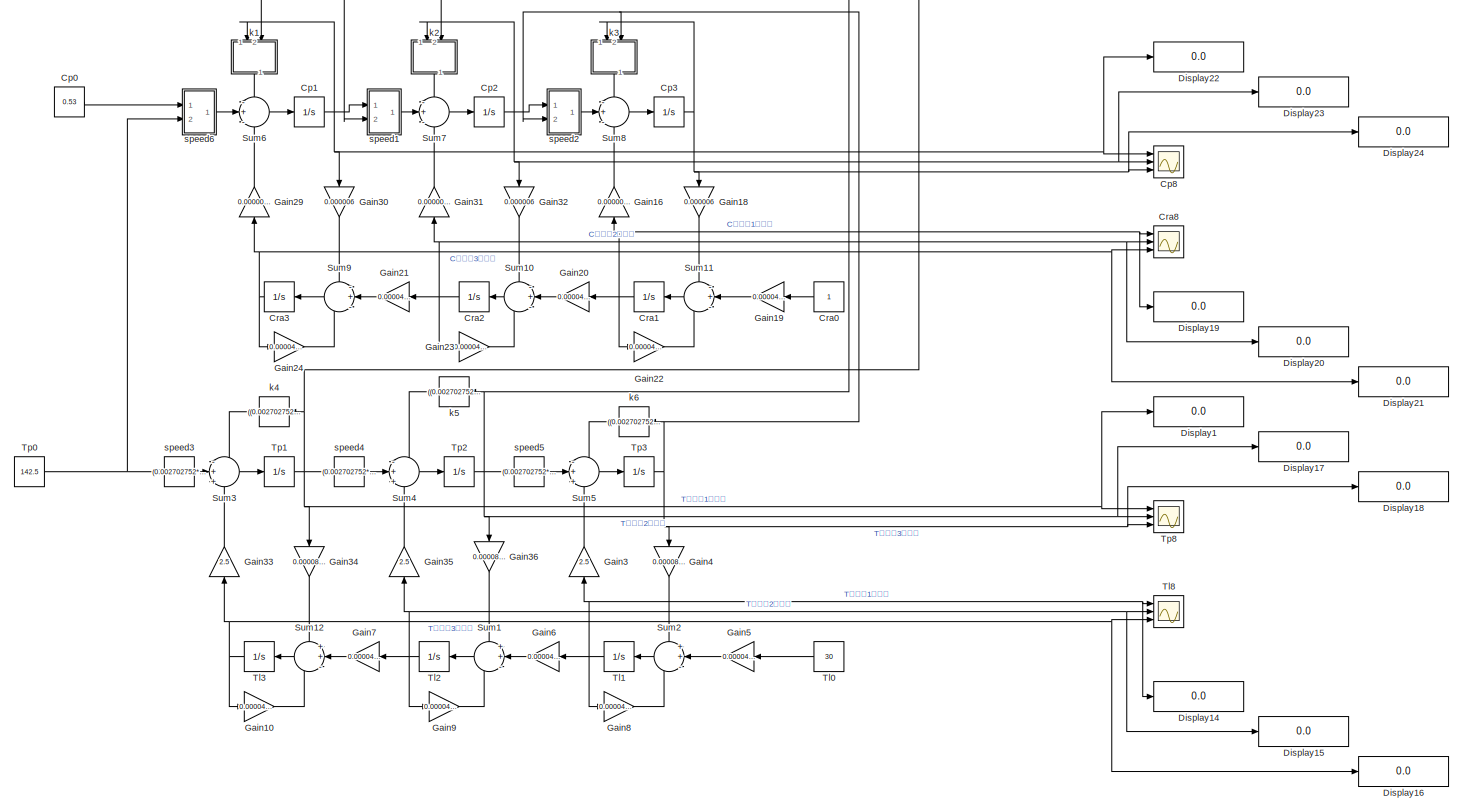
[diagram: root canvas - part 1/2, full width, top band]
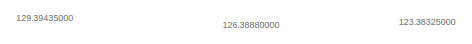
[diagram: root canvas - part 2/2, bottom center region]
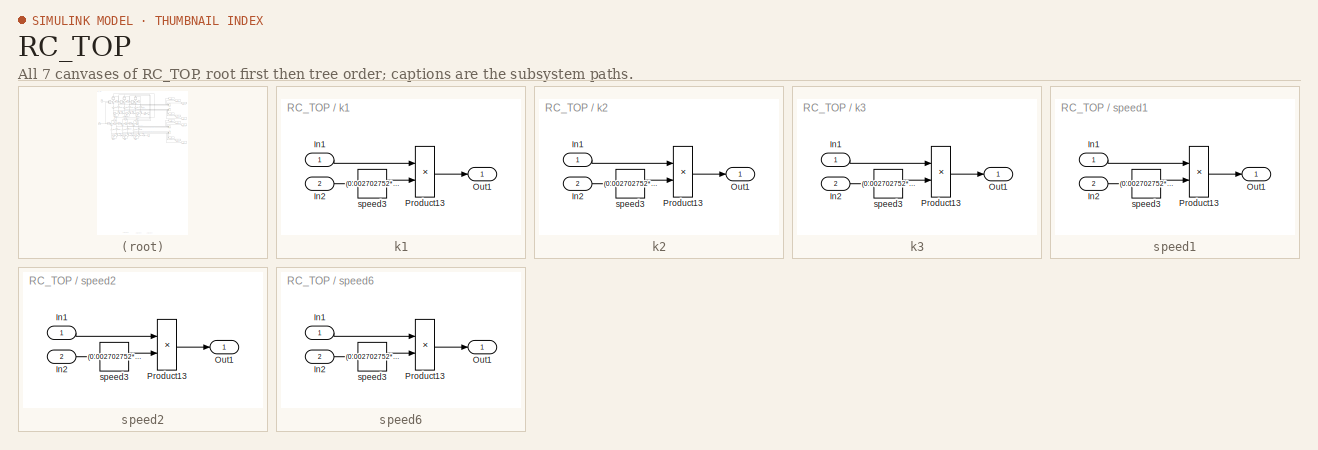
[diagram: thumbnail index - all 7 canvases of the model, root first then tree order]
MODEL RC_TOP
KIND model
BLOCK [Constant] Cp0
  SID = 4
  Value = 0.53
BLOCK [Integrator] Cp1
  InitialCondition = 0.68200000
  Ports = [1, 1]
  SID = 5
BLOCK [Integrator] Cp2
  InitialCondition = 0.83400000
  Ports = [1, 1]
  SID = 6
BLOCK [Integrator] Cp3
  InitialCondition = 0.98600000
  Ports = [1, 1]
  SID = 7
BLOCK [Scope] Cp8
  Floating = off
  NumInputPorts = 3
  Ports = [3]
  SID = 455
  ScopeSpecificationString = C++SS(StrPVP('Location','[5, 49, 1371, 737]'),StrPVP('Open','off'),StrPVP('TickLabels','on'),StrPVP('ZoomMode','xonly'),MxPVP('AxesTitles',53,'struct(''axes1'',''%<SignalLabel>'',''axes2'',''%<SignalLabel>'',''axes3'',''%<SignalLabel>'')'),MxPVP('ScopeGraphics',56,'struct(''FigureColor'',''[1 1 1]'',''AxesColor'',''[1 1 1]'',''AxesTickColor'',''[0 0 0]'',''LineColors'',''[0 0 0;1 0 1;0 1 1;1 0 0;0...<+446ch>
BLOCK [Constant] Cra0
  SID = 11
BLOCK [Integrator] Cra1
  InitialCondition = 0.88825000
  Ports = [1, 1]
  SID = 12
BLOCK [Integrator] Cra2
  InitialCondition = 0.77650000
  Ports = [1, 1]
  SID = 13
BLOCK [Integrator] Cra3
  InitialCondition = 0.66475000
  Ports = [1, 1]
  SID = 14
BLOCK [Scope] Cra8
  Floating = off
  NumInputPorts = 3
  Ports = [3]
  SID = 456
  ScopeSpecificationString = C++SS(StrPVP('Location','[5, 49, 1371, 737]'),StrPVP('Open','off'),StrPVP('TickLabels','on'),StrPVP('ZoomMode','xonly'),MxPVP('AxesTitles',53,'struct(''axes1'',''%<SignalLabel>'',''axes2'',''%<SignalLabel>'',''axes3'',''%<SignalLabel>'')'),MxPVP('ScopeGraphics',56,'struct(''FigureColor'',''[1 1 1]'',''AxesColor'',''[1 1 1]'',''AxesTickColor'',''[0 0 0]'',''LineColors'',''[0 0 0;1 0 0;0 1 1;1 0 0;0...<+459ch>
BLOCK [Display] Display1
  Decimation = 1
  Ports = [1]
  SID = 476
BLOCK [Display] Display14
  Decimation = 1
  Ports = [1]
  SID = 473
BLOCK [Display] Display15
  Decimation = 1
  Ports = [1]
  SID = 474
BLOCK [Display] Display16
  Decimation = 1
  Ports = [1]
  SID = 475
BLOCK [Display] Display17
  Decimation = 1
  Ports = [1]
  SID = 477
BLOCK [Display] Display18
  Decimation = 1
  Ports = [1]
  SID = 478
BLOCK [Display] Display19
  Decimation = 1
  Ports = [1]
  SID = 479
BLOCK [Display] Display20
  Decimation = 1
  Ports = [1]
  SID = 480
BLOCK [Display] Display21
  Decimation = 1
  Ports = [1]
  SID = 481
BLOCK [Display] Display22
  Decimation = 1
  Ports = [1]
  SID = 482
BLOCK [Display] Display23
  Decimation = 1
  Ports = [1]
  SID = 483
BLOCK [Display] Display24
  Decimation = 1
  Ports = [1]
  SID = 484
BLOCK [Gain] Gain10
  Gain = 0.00004/1.17+0.0000855
  OutDataTypeStr = Inherit: Inherit via internal rule
  ParamDataTypeStr = Inherit: Inherit via internal rule
  SID = 17
  SaturateOnIntegerOverflow = off
BLOCK [Gain] Gain16
  Gain = 0.000000000145
  OutDataTypeStr = Inherit: Inherit via internal rule
  ParamDataTypeStr = Inherit: Inherit via internal rule
  SID = 18
  SaturateOnIntegerOverflow = off
BLOCK [Gain] Gain18
  Gain = 0.000006
  OutDataTypeStr = Inherit: Inherit via internal rule
  ParamDataTypeStr = Inherit: Inherit via internal rule
  SID = 19
  SaturateOnIntegerOverflow = off
BLOCK [Gain] Gain19
  Gain = 0.00004/1.17
  OutDataTypeStr = Inherit: Inherit via internal rule
  ParamDataTypeStr = Inherit: Inherit via internal rule
  SID = 20
  SaturateOnIntegerOverflow = off
BLOCK [Gain] Gain20
  Gain = 0.00004/1.17
  OutDataTypeStr = Inherit: Inherit via internal rule
  ParamDataTypeStr = Inherit: Inherit via internal rule
  SID = 21
  SaturateOnIntegerOverflow = off
BLOCK [Gain] Gain21
  Gain = 0.00004/1.17
  OutDataTypeStr = Inherit: Inherit via internal rule
  ParamDataTypeStr = Inherit: Inherit via internal rule
  SID = 22
  SaturateOnIntegerOverflow = off
BLOCK [Gain] Gain22
  Gain = 0.00004/1.17-(0.000006*0.000000000145)
  OutDataTypeStr = Inherit: Inherit via internal rule
  ParamDataTypeStr = Inherit: Inherit via internal rule
  SID = 23
  SaturateOnIntegerOverflow = off
BLOCK [Gain] Gain23
  Gain = 0.00004/1.17-(0.000006*0.000000000145)
  OutDataTypeStr = Inherit: Inherit via internal rule
  ParamDataTypeStr = Inherit: Inherit via internal rule
  SID = 24
  SaturateOnIntegerOverflow = off
BLOCK [Gain] Gain24
  Gain = 0.00004/1.17-(0.000006*0.000000000145)
  OutDataTypeStr = Inherit: Inherit via internal rule
  ParamDataTypeStr = Inherit: Inherit via internal rule
  SID = 25
  SaturateOnIntegerOverflow = off
BLOCK [Gain] Gain29
  Gain = 0.000000000145
  OutDataTypeStr = Inherit: Inherit via internal rule
  ParamDataTypeStr = Inherit: Inherit via internal rule
  SID = 26
  SaturateOnIntegerOverflow = off
BLOCK [Gain] Gain3
  Gain = 2.5
  OutDataTypeStr = Inherit: Inherit via internal rule
  ParamDataTypeStr = Inherit: Inherit via internal rule
  SID = 27
  SaturateOnIntegerOverflow = off
BLOCK [Gain] Gain30
  Gain = 0.000006
  OutDataTypeStr = Inherit: Inherit via internal rule
  ParamDataTypeStr = Inherit: Inherit via internal rule
  SID = 28
  SaturateOnIntegerOverflow = off
BLOCK [Gain] Gain31
  Gain = 0.000000000145
  OutDataTypeStr = Inherit: Inherit via internal rule
  ParamDataTypeStr = Inherit: Inherit via internal rule
  SID = 29
  SaturateOnIntegerOverflow = off
BLOCK [Gain] Gain32
  Gain = 0.000006
  OutDataTypeStr = Inherit: Inherit via internal rule
  ParamDataTypeStr = Inherit: Inherit via internal rule
  SID = 30
  SaturateOnIntegerOverflow = off
BLOCK [Gain] Gain33
  Gain = 2.5
  OutDataTypeStr = Inherit: Inherit via internal rule
  ParamDataTypeStr = Inherit: Inherit via internal rule
  SID = 31
  SaturateOnIntegerOverflow = off
BLOCK [Gain] Gain34
  Gain = 0.0000855
  OutDataTypeStr = Inherit: Inherit via internal rule
  ParamDataTypeStr = Inherit: Inherit via internal rule
  SID = 32
  SaturateOnIntegerOverflow = off
BLOCK [Gain] Gain35
  Gain = 2.5
  OutDataTypeStr = Inherit: Inherit via internal rule
  ParamDataTypeStr = Inherit: Inherit via internal rule
  SID = 33
  SaturateOnIntegerOverflow = off
BLOCK [Gain] Gain36
  Gain = 0.0000855
  OutDataTypeStr = Inherit: Inherit via internal rule
  ParamDataTypeStr = Inherit: Inherit via internal rule
  SID = 34
  SaturateOnIntegerOverflow = off
BLOCK [Gain] Gain4
  Gain = 0.0000855
  OutDataTypeStr = Inherit: Inherit via internal rule
  ParamDataTypeStr = Inherit: Inherit via internal rule
  SID = 35
  SaturateOnIntegerOverflow = off
BLOCK [Gain] Gain5
  Gain = 0.00004/1.17
  OutDataTypeStr = Inherit: Inherit via internal rule
  ParamDataTypeStr = Inherit: Inherit via internal rule
  SID = 36
  SaturateOnIntegerOverflow = off
BLOCK [Gain] Gain6
  Gain = 0.00004/1.17
  OutDataTypeStr = Inherit: Inherit via internal rule
  ParamDataTypeStr = Inherit: Inherit via internal rule
  SID = 37
  SaturateOnIntegerOverflow = off
BLOCK [Gain] Gain7
  Gain = 0.00004/1.17
  OutDataTypeStr = Inherit: Inherit via internal rule
  ParamDataTypeStr = Inherit: Inherit via internal rule
  SID = 38
  SaturateOnIntegerOverflow = off
BLOCK [Gain] Gain8
  Gain = 0.00004/1.17+0.0000855
  OutDataTypeStr = Inherit: Inherit via internal rule
  ParamDataTypeStr = Inherit: Inherit via internal rule
  SID = 39
  SaturateOnIntegerOverflow = off
BLOCK [Gain] Gain9
  Gain = 0.00004/1.17+0.0000855
  OutDataTypeStr = Inherit: Inherit via internal rule
  ParamDataTypeStr = Inherit: Inherit via internal rule
  SID = 40
  SaturateOnIntegerOverflow = off
BLOCK [Sum] Sum1
  IconShape = round
  InputSameDT = off
  Inputs = ++-
  OutDataTypeStr = Inherit: Inherit via internal rule
  Ports = [3, 1]
  SID = 166
  SaturateOnIntegerOverflow = off
BLOCK [Sum] Sum10
  IconShape = round
  InputSameDT = off
  Inputs = -+-
  OutDataTypeStr = Inherit: Inherit via internal rule
  Ports = [3, 1]
  SID = 167
  SaturateOnIntegerOverflow = off
BLOCK [Sum] Sum11
  IconShape = round
  InputSameDT = off
  Inputs = -+-
  OutDataTypeStr = Inherit: Inherit via internal rule
  Ports = [3, 1]
  SID = 168
  SaturateOnIntegerOverflow = off
BLOCK [Sum] Sum12
  IconShape = round
  InputSameDT = off
  Inputs = ++-
  OutDataTypeStr = Inherit: Inherit via internal rule
  Ports = [3, 1]
  SID = 169
  SaturateOnIntegerOverflow = off
BLOCK [Sum] Sum2
  IconShape = round
  InputSameDT = off
  Inputs = ++-
  OutDataTypeStr = Inherit: Inherit via internal rule
  Ports = [3, 1]
  SID = 170
  SaturateOnIntegerOverflow = off
BLOCK [Sum] Sum3
  IconShape = round
  InputSameDT = off
  Inputs = -++
  OutDataTypeStr = Inherit: Inherit via internal rule
  Ports = [3, 1]
  SID = 171
  SaturateOnIntegerOverflow = off
BLOCK [Sum] Sum4
  IconShape = round
  InputSameDT = off
  Inputs = -++
  OutDataTypeStr = Inherit: Inherit via internal rule
  Ports = [3, 1]
  SID = 172
  SaturateOnIntegerOverflow = off
BLOCK [Sum] Sum5
  IconShape = round
  InputSameDT = off
  Inputs = -++
  OutDataTypeStr = Inherit: Inherit via internal rule
  Ports = [3, 1]
  SID = 173
  SaturateOnIntegerOverflow = off
BLOCK [Sum] Sum6
  IconShape = round
  InputSameDT = off
  Inputs = -+-
  OutDataTypeStr = Inherit: Inherit via internal rule
  Ports = [3, 1]
  SID = 174
  SaturateOnIntegerOverflow = off
BLOCK [Sum] Sum7
  IconShape = round
  InputSameDT = off
  Inputs = -+-
  OutDataTypeStr = Inherit: Inherit via internal rule
  Ports = [3, 1]
  SID = 175
  SaturateOnIntegerOverflow = off
BLOCK [Sum] Sum8
  IconShape = round
  InputSameDT = off
  Inputs = -+-
  OutDataTypeStr = Inherit: Inherit via internal rule
  Ports = [3, 1]
  SID = 176
  SaturateOnIntegerOverflow = off
BLOCK [Sum] Sum9
  IconShape = round
  InputSameDT = off
  Inputs = -+-
  OutDataTypeStr = Inherit: Inherit via internal rule
  Ports = [3, 1]
  SID = 177
  SaturateOnIntegerOverflow = off
BLOCK [Constant] Tl0
  SID = 459
  Value = 30
BLOCK [Integrator] Tl1
  InitialCondition = 57.25000000
  Ports = [1, 1]
  SID = 180
BLOCK [Integrator] Tl2
  InitialCondition = 84.50000000
  Ports = [1, 1]
  SID = 181
BLOCK [Integrator] Tl3
  InitialCondition = 111.75000000
  Ports = [1, 1]
  SID = 182
BLOCK [Scope] Tl8
  Floating = off
  NumInputPorts = 3
  Ports = [3]
  SID = 457
  ScopeSpecificationString = C++SS(StrPVP('Location','[5, 49, 1371, 737]'),StrPVP('Open','off'),StrPVP('TickLabels','on'),StrPVP('ZoomMode','xonly'),MxPVP('AxesTitles',53,'struct(''axes1'',''%<SignalLabel>'',''axes2'',''%<SignalLabel>'',''axes3'',''%<SignalLabel>'')'),MxPVP('ScopeGraphics',56,'struct(''FigureColor'',''[1 1 1]'',''AxesColor'',''[1 1 1]'',''AxesTickColor'',''[0 0 0]'',''LineColors'',''[0 0 0;1 0 1;0 1 1;1 0 0;0...<+472ch>
BLOCK [Constant] Tp0
  SID = 189
  Value = 142.5
BLOCK [Integrator] Tp1
  InitialCondition = 118.20000000
  Ports = [1, 1]
  SID = 190
BLOCK [Integrator] Tp2
  InitialCondition = 93.90000000
  Ports = [1, 1]
  SID = 191
BLOCK [Integrator] Tp3
  IgnoreLimit = on
  InitialCondition = 69.60000000
  Ports = [1, 1]
  SID = 192
BLOCK [Scope] Tp8
  Floating = off
  NumInputPorts = 3
  Ports = [3]
  SID = 458
  ScopeSpecificationString = C++SS(StrPVP('Location','[1, 49, 1367, 737]'),StrPVP('Open','off'),StrPVP('TickLabels','on'),StrPVP('ZoomMode','xonly'),MxPVP('AxesTitles',53,'struct(''axes1'',''%<SignalLabel>'',''axes2'',''%<SignalLabel>'',''axes3'',''%<SignalLabel>'')'),MxPVP('ScopeGraphics',56,'struct(''FigureColor'',''[1 1 1]'',''AxesColor'',''[1 1 1]'',''AxesTickColor'',''[0 0 0]'',''LineColors'',''[0 0 0;1 0 1;0 1 1;1 0 0;0...<+464ch>
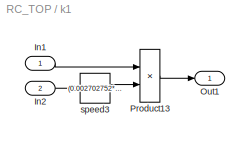
BLOCK [SubSystem] k1
  Ports = [2, 1]
  RequestExecContextInheritance = off
  SID = 194
BLOCK [Inport] k1/In1
  IconDisplay = Port number
  SID = 195
BLOCK [Inport] k1/In2
  IconDisplay = Port number
  Port = 2
  SID = 196
BLOCK [Outport] k1/Out1
  IconDisplay = Port number
  SID = 199
BLOCK [Product] k1/Product13
  Ports = [2, 1]
  RndMeth = Floor
  SID = 197
BLOCK [Fcn] k1/speed3
  Expr = (0.002702752*(273.15+u))/1.17-0.147
  SID = 198
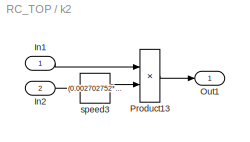
BLOCK [SubSystem] k2
  Ports = [2, 1]
  RequestExecContextInheritance = off
  SID = 200
BLOCK [Inport] k2/In1
  IconDisplay = Port number
  SID = 201
BLOCK [Inport] k2/In2
  IconDisplay = Port number
  Port = 2
  SID = 202
BLOCK [Outport] k2/Out1
  IconDisplay = Port number
  SID = 205
BLOCK [Product] k2/Product13
  Ports = [2, 1]
  RndMeth = Floor
  SID = 203
BLOCK [Fcn] k2/speed3
  Expr = (0.002702752*(273.15+u))/1.17-0.147
  SID = 204
BLOCK [SubSystem] k3
  Ports = [2, 1]
  RequestExecContextInheritance = off
  SID = 206
BLOCK [Inport] k3/In1
  IconDisplay = Port number
  SID = 207
BLOCK [Inport] k3/In2
  IconDisplay = Port number
  Port = 2
  SID = 208
BLOCK [Outport] k3/Out1
  IconDisplay = Port number
  SID = 211
BLOCK [Product] k3/Product13
  Ports = [2, 1]
  RndMeth = Floor
  SID = 209
BLOCK [Fcn] k3/speed3
  Expr = (0.002702752*(273.15+u))/1.17-0.147
  SID = 210
BLOCK [Fcn] k4
  Expr = ((0.002702752*(273.15+u))/1.17+2.5)*u
  SID = 212
BLOCK [Fcn] k5
  Expr = ((0.002702752*(273.15+u))/1.17+2.5)*u
  SID = 213
BLOCK [Fcn] k6
  Expr = ((0.002702752*(273.15+u))/1.17+2.5)*u
  SID = 214
BLOCK [SubSystem] speed1
  Ports = [2, 1]
  RequestExecContextInheritance = off
  SID = 215
BLOCK [Inport] speed1/In1
  IconDisplay = Port number
  SID = 216
BLOCK [Inport] speed1/In2
  IconDisplay = Port number
  Port = 2
  SID = 217
BLOCK [Outport] speed1/Out1
  IconDisplay = Port number
  SID = 220
BLOCK [Product] speed1/Product13
  Ports = [2, 1]
  RndMeth = Floor
  SID = 218
BLOCK [Fcn] speed1/speed3
  Expr = (0.002702752*(273.15+u))/1.17
  SID = 219
BLOCK [SubSystem] speed2
  Ports = [2, 1]
  RequestExecContextInheritance = off
  SID = 221
BLOCK [Inport] speed2/In1
  IconDisplay = Port number
  SID = 222
BLOCK [Inport] speed2/In2
  IconDisplay = Port number
  Port = 2
  SID = 223
BLOCK [Outport] speed2/Out1
  IconDisplay = Port number
  SID = 226
BLOCK [Product] speed2/Product13
  Ports = [2, 1]
  RndMeth = Floor
  SID = 224
BLOCK [Fcn] speed2/speed3
  Expr = (0.002702752*(273.15+u))/1.17
  SID = 225
BLOCK [Fcn] speed3
  Expr = (0.002702752*(273.15+u))/1.17*u
  SID = 227
BLOCK [Fcn] speed4
  Expr = (0.002702752*(273.15+u))/1.17*u
  SID = 228
BLOCK [Fcn] speed5
  Expr = (0.002702752*(273.15+u))/1.17*u
  SID = 229
BLOCK [SubSystem] speed6
  Ports = [2, 1]
  RequestExecContextInheritance = off
  SID = 230
BLOCK [Inport] speed6/In1
  IconDisplay = Port number
  SID = 231
BLOCK [Inport] speed6/In2
  IconDisplay = Port number
  Port = 2
  SID = 232
BLOCK [Outport] speed6/Out1
  IconDisplay = Port number
  SID = 235
BLOCK [Product] speed6/Product13
  Ports = [2, 1]
  RndMeth = Floor
  SID = 233
BLOCK [Fcn] speed6/speed3
  Expr = (0.002702752*(273.15+u))/1.17
  SID = 234
ANNOTATION (root): 123.38325000
ANNOTATION (root): 126.38880000
ANNOTATION (root): 129.39435000
LINE Cp0:1 -> speed6:1
NET Cp1:1 -> Cp8:1, Display22:1, Gain30:1, k1:1, speed1:1
NET Cp2:1 -> Cp8:2, Display23:1, Gain32:1, k2:1, speed2:1
NET Cp3:1 -> Cp8:3, Display24:1, Gain18:1, k3:1
LINE Cra0:1 -> Gain19:1
NET Cra1:1 -> Cra8:1, Display19:1, Gain16:1, Gain20:1, Gain22:1
NET Cra2:1 -> Cra8:2, Display20:1, Gain21:1, Gain23:1, Gain31:1
NET Cra3:1 -> Cra8:3, Display21:1, Gain24:1, Gain29:1
LINE Gain10:1 -> Sum12:3
LINE Gain16:1 -> Sum8:3
LINE Gain18:1 -> Sum11:1
LINE Gain19:1 -> Sum11:2
LINE Gain20:1 -> Sum10:2
LINE Gain21:1 -> Sum9:2
LINE Gain22:1 -> Sum11:3
LINE Gain23:1 -> Sum10:3
LINE Gain24:1 -> Sum9:3
LINE Gain29:1 -> Sum6:3
LINE Gain30:1 -> Sum9:1
LINE Gain31:1 -> Sum7:3
LINE Gain32:1 -> Sum10:1
LINE Gain33:1 -> Sum3:3
LINE Gain34:1 -> Sum12:1
LINE Gain35:1 -> Sum4:3
LINE Gain36:1 -> Sum1:1
LINE Gain3:1 -> Sum5:3
LINE Gain4:1 -> Sum2:1
LINE Gain5:1 -> Sum2:2
LINE Gain6:1 -> Sum1:2
LINE Gain7:1 -> Sum12:2
LINE Gain8:1 -> Sum2:3
LINE Gain9:1 -> Sum1:3
LINE Sum10:1 -> Cra2:1
LINE Sum11:1 -> Cra1:1
LINE Sum12:1 -> Tl3:1
LINE Sum1:1 -> Tl2:1
LINE Sum2:1 -> Tl1:1
LINE Sum3:1 -> Tp1:1
LINE Sum4:1 -> Tp2:1
LINE Sum5:1 -> Tp3:1
LINE Sum6:1 -> Cp1:1
LINE Sum7:1 -> Cp2:1
LINE Sum8:1 -> Cp3:1
LINE Sum9:1 -> Cra3:1
LINE Tl0:1 -> Gain5:1
NET Tl1:1 -> Display14:1, Gain3:1, Gain6:1, Gain8:1, Tl8:1
NET Tl2:1 -> Display15:1, Gain35:1, Gain7:1, Gain9:1, Tl8:2
NET Tl3:1 -> Display16:1, Gain10:1, Gain33:1, Tl8:3
NET Tp0:1 -> speed3:1, speed6:2
NET Tp1:1 -> Display1:1, Gain34:1, Tp8:1, k1:2, k4:1, speed4:1
NET Tp2:1 -> Display17:1, Gain36:1, Tp8:2, k2:2, k5:1, speed1:2, speed5:1
NET Tp3:1 -> Display18:1, Gain4:1, Tp8:3, k3:2, k6:1, speed2:2
LINE k1/In1:1 -> k1/Product13:1
LINE k1/In2:1 -> k1/speed3:1
LINE k1/Product13:1 -> k1/Out1:1
LINE k1/speed3:1 -> k1/Product13:2
LINE k1:1 -> Sum6:1
LINE k2/In1:1 -> k2/Product13:1
LINE k2/In2:1 -> k2/speed3:1
LINE k2/Product13:1 -> k2/Out1:1
LINE k2/speed3:1 -> k2/Product13:2
LINE k2:1 -> Sum7:1
LINE k3/In1:1 -> k3/Product13:1
LINE k3/In2:1 -> k3/speed3:1
LINE k3/Product13:1 -> k3/Out1:1
LINE k3/speed3:1 -> k3/Product13:2
LINE k3:1 -> Sum8:1
LINE k4:1 -> Sum3:1
LINE k5:1 -> Sum4:1
LINE k6:1 -> Sum5:1
LINE speed1/In1:1 -> speed1/Product13:1
LINE speed1/In2:1 -> speed1/speed3:1
LINE speed1/Product13:1 -> speed1/Out1:1
LINE speed1/speed3:1 -> speed1/Product13:2
LINE speed1:1 -> Sum7:2
LINE speed2/In1:1 -> speed2/Product13:1
LINE speed2/In2:1 -> speed2/speed3:1
LINE speed2/Product13:1 -> speed2/Out1:1
LINE speed2/speed3:1 -> speed2/Product13:2
LINE speed2:1 -> Sum8:2
LINE speed3:1 -> Sum3:2
LINE speed4:1 -> Sum4:2
LINE speed5:1 -> Sum5:2
LINE speed6/In1:1 -> speed6/Product13:1
LINE speed6/In2:1 -> speed6/speed3:1
LINE speed6/Product13:1 -> speed6/Out1:1
LINE speed6/speed3:1 -> speed6/Product13:2
LINE speed6:1 -> Sum6:2
note: NET lines group one-source signal fan-out (src -> all destinations, sorted); 1:1 wires keep LINE
